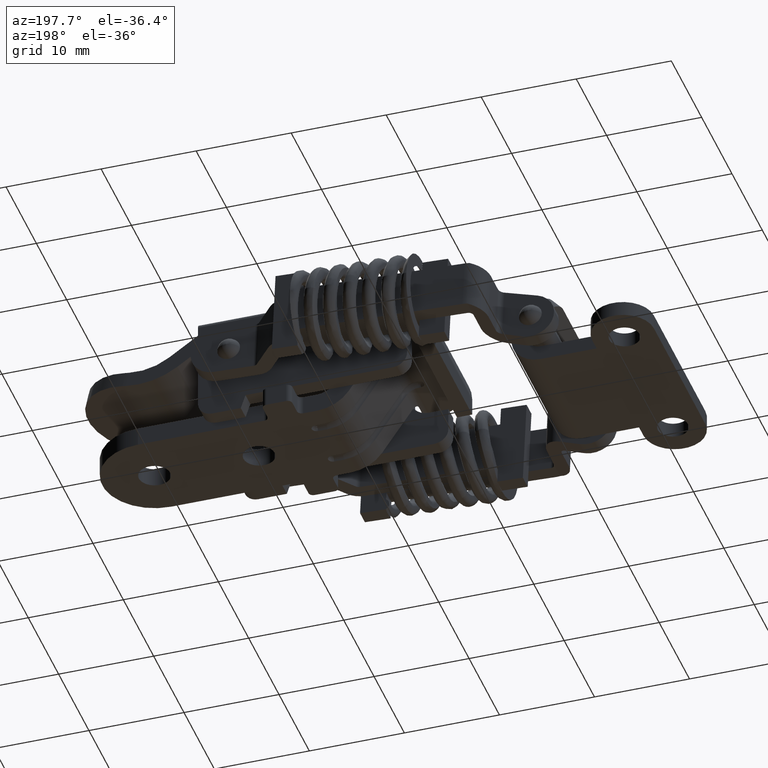
[diagram: clean part render]
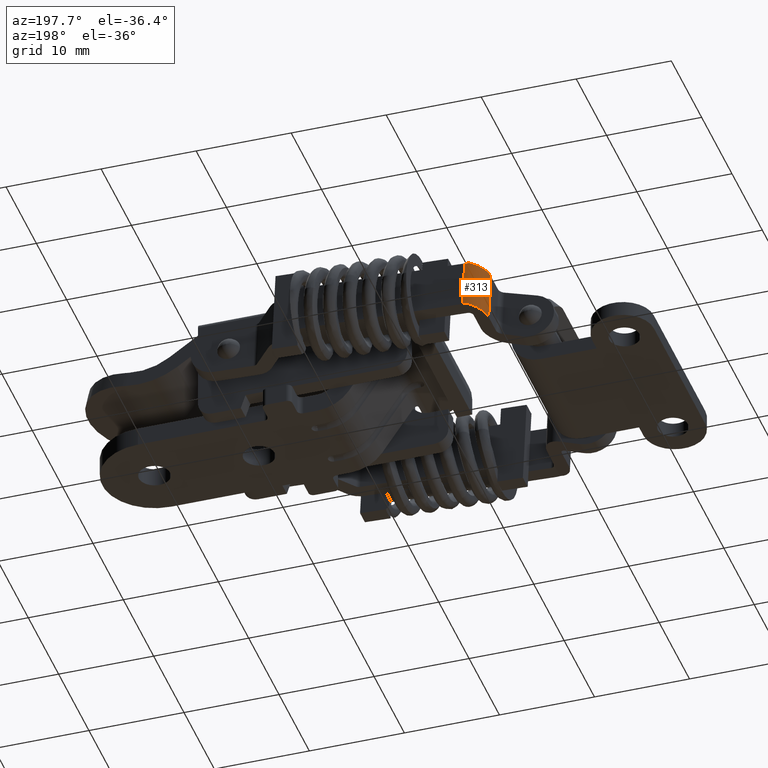
[diagram: same view with one face highlighted and labeled with its STEP entity id]
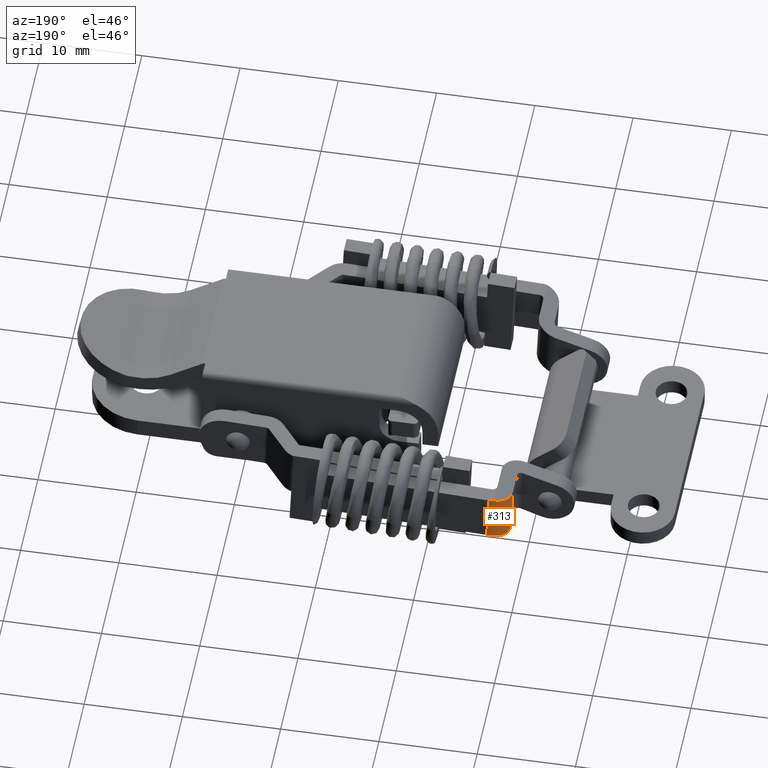
[diagram: same view with one face highlighted and labeled with its STEP entity id]
A machine part, auxiliary view. The second image highlights one B-rep face of the part: STEP entity #313.
A second angle (auxiliary view) of the same face is appended — the face is thin or edge-on in the first view.
In plain terms, the highlighted cylindrical surface (edge-blend (fillet) strip) has radius 2.1 mm, axis along (0.0436, 0, -0.999).
Its self-contained STEP definition (entity closure, byte-faithful):
#313=ADVANCED_FACE('',(#849),#848,.T.);
#848=CYLINDRICAL_SURFACE('',#4681,2.10000000000E+00);
#849=FACE_OUTER_BOUND('',#4682,.T.);
#4678=CARTESIAN_POINT('',(1.32500000000E+01,2.60703682899E-01,2.40000000000E+01));
#4679=DIRECTION('',(-0.00000000000E+00,1.00000000000E+00,-0.00000000000E+00));
#4680=DIRECTION('',(-0.00000000000E+00,-0.00000000000E+00,1.00000000000E+00));
#4681=AXIS2_PLACEMENT_3D('',#4678,#4679,#4680);
#4682=EDGE_LOOP('',(#12695,#12696,#12697,#12698,#12699,#12700));
#12695=ORIENTED_EDGE('',*,*,#14548,.F.);
#12696=ORIENTED_EDGE('',*,*,#14568,.F.);
#12697=ORIENTED_EDGE('',*,*,#14538,.F.);
#12698=ORIENTED_EDGE('',*,*,#14559,.F.);
#12699=ORIENTED_EDGE('',*,*,#14564,.F.);
#12700=ORIENTED_EDGE('',*,*,#14551,.F.);
#14538=EDGE_CURVE('',#15686,#15693,#15694,.T.);
#14548=EDGE_CURVE('',#15754,#15761,#15762,.T.);
#14551=EDGE_CURVE('',#15761,#15780,#15781,.T.);
#14559=EDGE_CURVE('',#15827,#15686,#15834,.T.);
#14564=EDGE_CURVE('',#15780,#15827,#15866,.T.);
#14568=EDGE_CURVE('',#15693,#15754,#15892,.T.);
#15686=VERTEX_POINT('',#21868);
#15693=VERTEX_POINT('',#21872);
#15694=(BOUNDED_CURVE() B_SPLINE_CURVE(2,(#21873,#21874,#21875),.UNSPECIFIED.,.F.,.F.) B_SPLINE_CURVE_WITH_KNOTS((3,3),(-4.47198476363E+00,-3.14159265359E+00),.UNSPECIFIED.) CURVE() GEOMETRIC_REPRESENTATION_ITEM() RATIONAL_B_SPLINE_CURVE((1.00000000000E+00,7.86795792465E-01,1.00000000000E+00)) REPRESENTATION_ITEM('') );
#15754=VERTEX_POINT('',#21906);
#15761=VERTEX_POINT('',#21910);
#15762=(BOUNDED_CURVE() B_SPLINE_CURVE(2,(#21911,#21912,#21913),.UNSPECIFIED.,.F.,.F.) B_SPLINE_CURVE_WITH_KNOTS((3,3),(-3.14159265359E+00,-1.81120054355E+00),.UNSPECIFIED.) CURVE() GEOMETRIC_REPRESENTATION_ITEM() RATIONAL_B_SPLINE_CURVE((1.00000000000E+00,7.86795792465E-01,1.00000000000E+00)) REPRESENTATION_ITEM('') );
#15780=VERTEX_POINT('',#21921);
#15781=CIRCLE('',#21925,2.10000000000E+00);
#15827=VERTEX_POINT('',#21948);
#15834=CIRCLE('',#21955,2.10000000000E+00);
#15866=LINE('',#21970,#21971);
#15892=LINE('',#21984,#21985);
#21868=CARTESIAN_POINT('',(1.52896078054E+01,-2.50000000002E+00,2.45000000000E+01));
#21872=CARTESIAN_POINT('',(1.32500000000E+01,-2.05091478641E+00,2.61000000000E+01));
#21873=CARTESIAN_POINT('',(1.52896078054E+01,-2.50000000002E+00,2.45000000000E+01));
#21874=CARTESIAN_POINT('',(1.48973755352E+01,-2.05091478641E+00,2.61000000000E+01));
#21875=CARTESIAN_POINT('',(1.32500000000E+01,-2.05091478641E+00,2.61000000000E+01));
#21906=CARTESIAN_POINT('',(1.32500000000E+01,3.02140740451E+00,2.61000000000E+01));
#21910=CARTESIAN_POINT('',(1.52896078054E+01,2.49999999998E+00,2.45000000000E+01));
#21911=CARTESIAN_POINT('',(1.32500000000E+01,3.02140740451E+00,2.61000000000E+01));
#21912=CARTESIAN_POINT('',(1.48973755352E+01,3.02140740451E+00,2.61000000000E+01));
#21913=CARTESIAN_POINT('',(1.52896078054E+01,2.49999999998E+00,2.45000000000E+01));
#21921=CARTESIAN_POINT('',(1.53500000000E+01,2.49999999998E+00,2.40000000000E+01));
#21922=CARTESIAN_POINT('',(1.32500000000E+01,2.49999999998E+00,2.40000000000E+01));
#21923=DIRECTION('',(8.65675759591E-17,1.00000000000E+00,-1.11768157979E-12));
#21924=DIRECTION('',(-9.71241812112E-01,-2.66030583810E-13,-2.38095238099E-01));
#21925=AXIS2_PLACEMENT_3D('',#21922,#21923,#21924);
#21948=CARTESIAN_POINT('',(1.53500000000E+01,-2.50000000002E+00,2.40000000000E+01));
#21952=CARTESIAN_POINT('',(1.32500000000E+01,-2.50000000002E+00,2.40000000000E+01));
#21953=DIRECTION('',(0.00000000000E+00,-1.00000000000E+00,1.10174432000E-12));
#21954=DIRECTION('',(-1.00000000000E+00,-0.00000000000E+00,-0.00000000000E+00));
#21955=AXIS2_PLACEMENT_3D('',#21952,#21953,#21954);
#21970=CARTESIAN_POINT('',(1.53500000000E+01,2.49999999998E+00,2.40000000000E+01));
#21971=VECTOR('',#21972,5.00000000000E+00);
#21972=DIRECTION('',(0.00000000000E+00,-1.00000000000E+00,0.00000000000E+00));
#21984=CARTESIAN_POINT('',(1.32500000000E+01,-2.05091478641E+00,2.61000000000E+01));
#21985=VECTOR('',#21986,5.07232219092E+00);
#21986=DIRECTION('',(0.00000000000E+00,1.00000000000E+00,0.00000000000E+00));